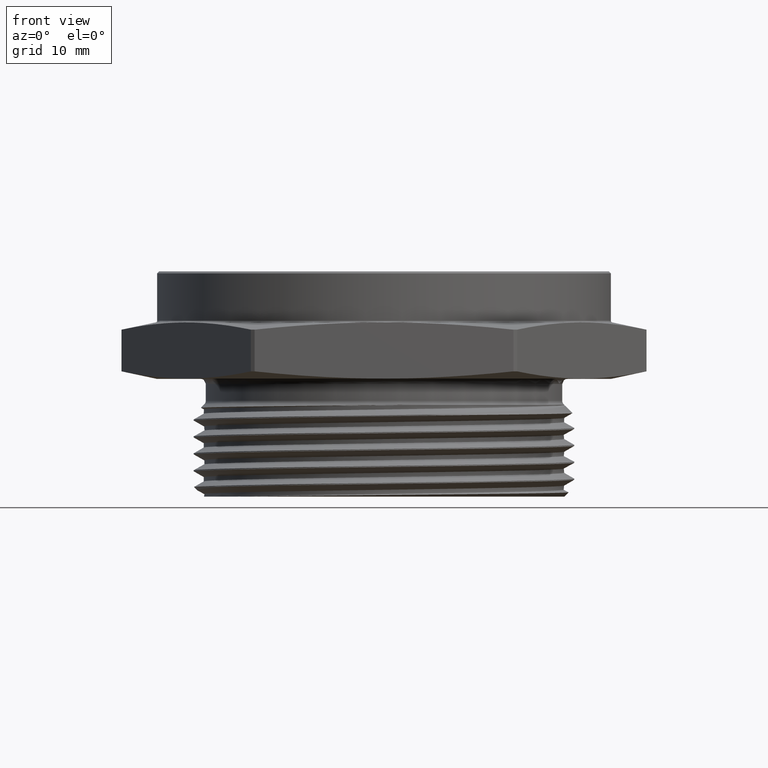
[diagram: clean part render]
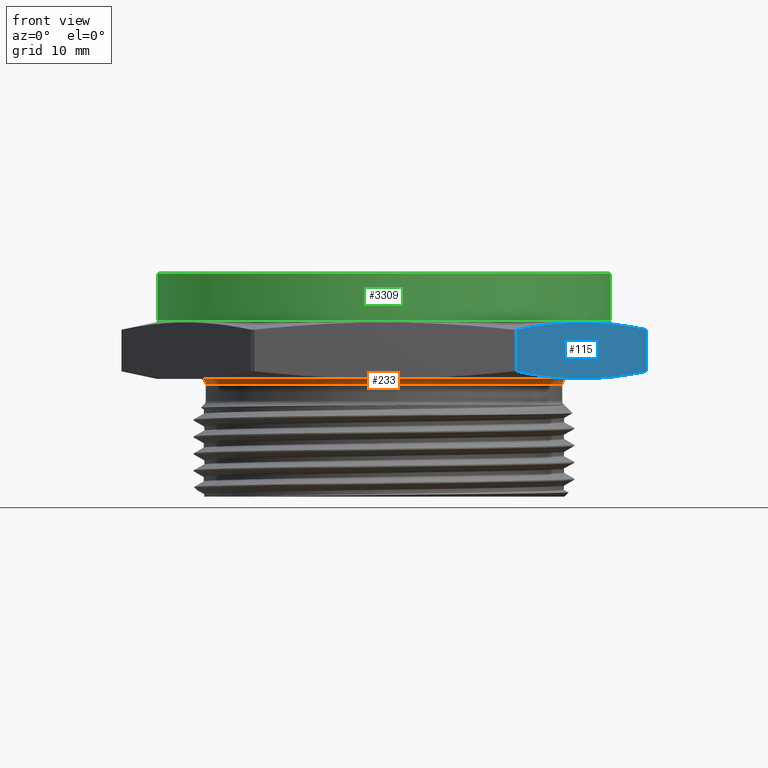
[diagram: same view with three faces highlighted in distinct colors, each labeled with its STEP entity id]
A machine part, front view with three faces highlighted in distinct colors.
Their STEP definitions:

[orange] entity #233 — the highlighted toroidal blend (fillet) surface has major radius 22.9362 mm and minor (blend) radius 0.635 mm.
#7 = VERTEX_POINT ( 'NONE', #2650 ) ;
#46 = VERTEX_POINT ( 'NONE', #2626 ) ;
#47 = VERTEX_POINT ( 'NONE', #2715 ) ;
#48 = VERTEX_POINT ( 'NONE', #2623 ) ;
#88 = EDGE_LOOP ( 'NONE', ( #101, #102, #103, #104 ) ) ;
#101 = ORIENTED_EDGE ( 'NONE', *, *, #626, .F. ) ;
#102 = ORIENTED_EDGE ( 'NONE', *, *, #627, .T. ) ;
#103 = ORIENTED_EDGE ( 'NONE', *, *, #628, .T. ) ;
#104 = ORIENTED_EDGE ( 'NONE', *, *, #629, .F. ) ;
#233 = ADVANCED_FACE ( 'NONE', ( #308 ), #302, .F. ) ;
#302 = TOROIDAL_SURFACE ( 'NONE', #356, 0.9030000000000000200, 0.02500000000000000500 ) ;
#308 = FACE_OUTER_BOUND ( 'NONE', #88, .T. ) ;
#356 = AXIS2_PLACEMENT_3D ( 'NONE', #2697, #2698, #2695 ) ;
#389 = AXIS2_PLACEMENT_3D ( 'NONE', #938, #937, #936 ) ;
#390 = AXIS2_PLACEMENT_3D ( 'NONE', #934, #933, #932 ) ;
#391 = AXIS2_PLACEMENT_3D ( 'NONE', #930, #929, #928 ) ;
#392 = AXIS2_PLACEMENT_3D ( 'NONE', #927, #926, #925 ) ;
#487 = CIRCLE ( 'NONE', #390, 0.02500000000000000500 ) ;
#488 = CIRCLE ( 'NONE', #391, 0.8780000000000000000 ) ;
#489 = CIRCLE ( 'NONE', #389, 0.9030000000000000200 ) ;
#491 = CIRCLE ( 'NONE', #392, 0.02500000000000000500 ) ;
#626 = EDGE_CURVE ( 'NONE', #7, #46, #489, .T. ) ;
#627 = EDGE_CURVE ( 'NONE', #7, #48, #487, .T. ) ;
#628 = EDGE_CURVE ( 'NONE', #48, #47, #488, .T. ) ;
#629 = EDGE_CURVE ( 'NONE', #46, #47, #491, .T. ) ;
#925 = DIRECTION ( 'NONE',  ( 0.0000000000000000000, 0.0000000000000000000, -1.000000000000000000 ) ) ;
#926 = DIRECTION ( 'NONE',  ( 0.0000000000000000000, -1.000000000000000000, 0.0000000000000000000 ) ) ;
#927 = CARTESIAN_POINT ( 'NONE',  ( 0.9030000000000000200, 0.0000000000000000000, -0.02500000000000003300 ) ) ;
#928 = DIRECTION ( 'NONE',  ( 1.000000000000000000, 0.0000000000000000000, 0.0000000000000000000 ) ) ;
#929 = DIRECTION ( 'NONE',  ( -0.0000000000000000000, -0.0000000000000000000, 1.000000000000000000 ) ) ;
#930 = CARTESIAN_POINT ( 'NONE',  ( 0.0000000000000000000, 0.0000000000000000000, -0.02500000000000003600 ) ) ;
#932 = DIRECTION ( 'NONE',  ( -1.000000000000000000, 1.224646799147351700E-016, 0.0000000000000000000 ) ) ;
#933 = DIRECTION ( 'NONE',  ( 1.224646799147353200E-016, 1.000000000000000000, 0.0000000000000000000 ) ) ;
#934 = CARTESIAN_POINT ( 'NONE',  ( -0.9030000000000000200, 1.105856059630060000E-016, -0.02500000000000003300 ) ) ;
#936 = DIRECTION ( 'NONE',  ( 1.000000000000000000, 0.0000000000000000000, 0.0000000000000000000 ) ) ;
#937 = DIRECTION ( 'NONE',  ( -0.0000000000000000000, -0.0000000000000000000, 1.000000000000000000 ) ) ;
#938 = CARTESIAN_POINT ( 'NONE',  ( 0.0000000000000000000, 0.0000000000000000000, -2.987958743070287600E-017 ) ) ;
#2623 = CARTESIAN_POINT ( 'NONE',  ( -0.8780000000000000000, 1.075239889651376100E-016, -0.02500000000000003600 ) ) ;
#2626 = CARTESIAN_POINT ( 'NONE',  ( 0.9030000000000000200, 0.0000000000000000000, -2.774533118565267500E-017 ) ) ;
#2650 = CARTESIAN_POINT ( 'NONE',  ( -0.9030000000000000200, 1.105856059630060000E-016, -2.774533118565267500E-017 ) ) ;
#2695 = DIRECTION ( 'NONE',  ( 1.000000000000000000, 0.0000000000000000000, 0.0000000000000000000 ) ) ;
#2697 = CARTESIAN_POINT ( 'NONE',  ( 0.0000000000000000000, 0.0000000000000000000, -0.02500000000000003300 ) ) ;
#2698 = DIRECTION ( 'NONE',  ( -0.0000000000000000000, -0.0000000000000000000, 1.000000000000000000 ) ) ;
#2715 = CARTESIAN_POINT ( 'NONE',  ( 0.8780000000000000000, 0.0000000000000000000, -0.02500000000000003600 ) ) ;

[blue] entity #115 — the highlighted planar face has unit normal (-0.866, 0.5, 0).
#115 = ADVANCED_FACE ( 'NONE', ( #283 ), #2747, .F. ) ;
#123 = VERTEX_POINT ( 'NONE', #2737 ) ;
#124 = VERTEX_POINT ( 'NONE', #2736 ) ;
#127 = VERTEX_POINT ( 'NONE', #2727 ) ;
#130 = VERTEX_POINT ( 'NONE', #2724 ) ;
#223 = LINE ( 'NONE', #3171, #224 ) ;
#224 = VECTOR ( 'NONE', #3172, 39.37007874015748100 ) ;
#225 = LINE ( 'NONE', #3189, #226 ) ;
#226 = VECTOR ( 'NONE', #3191, 39.37007874015748100 ) ;
#283 = FACE_OUTER_BOUND ( 'NONE', #1709, .T. ) ;
#357 = AXIS2_PLACEMENT_3D ( 'NONE', #2745, #2741, #2740 ) ;
#535 = B_SPLINE_CURVE_WITH_KNOTS ( 'NONE', 3,
 ( #3176, #3177, #3182, #3183, #3184, #3185, #3186, #3187, #3188 ),
 .UNSPECIFIED., .F., .F.,
 ( 4, 2, 1, 2, 4 ),
 ( 1.908587031545563600E-006, 0.008097324754050061500, 0.01619274092106858000, 0.02428815708808709400, 0.03238357325510560900 ),
 .UNSPECIFIED. ) ;
#536 = B_SPLINE_CURVE_WITH_KNOTS ( 'NONE', 3,
 ( #3190, #3181, #3194, #3195, #3196, #3197, #3198, #3199, #3200 ),
 .UNSPECIFIED., .F., .F.,
 ( 4, 2, 1, 2, 4 ),
 ( 1.908587031559784100E-006, 0.008097324754050078800, 0.01619274092106859400, 0.02428815708808710800, 0.03238357325510562300 ),
 .UNSPECIFIED. ) ;
#712 = EDGE_CURVE ( 'NONE', #130, #127, #223, .T. ) ;
#713 = EDGE_CURVE ( 'NONE', #124, #130, #535, .T. ) ;
#714 = EDGE_CURVE ( 'NONE', #123, #124, #225, .T. ) ;
#715 = EDGE_CURVE ( 'NONE', #127, #123, #536, .T. ) ;
#986 = ORIENTED_EDGE ( 'NONE', *, *, #712, .F. ) ;
#987 = ORIENTED_EDGE ( 'NONE', *, *, #713, .F. ) ;
#988 = ORIENTED_EDGE ( 'NONE', *, *, #714, .F. ) ;
#989 = ORIENTED_EDGE ( 'NONE', *, *, #715, .F. ) ;
#1709 = EDGE_LOOP ( 'NONE', ( #986, #987, #988, #989 ) ) ;
#2724 = CARTESIAN_POINT ( 'NONE',  ( 1.292995751187356400, -0.01046566497281166200, 0.2426882238153006100 ) ) ;
#2727 = CARTESIAN_POINT ( 'NONE',  ( 1.292995751187356400, -0.01046566497281166200, 0.03731177618469939900 ) ) ;
#2736 = CARTESIAN_POINT ( 'NONE',  ( 0.6555614073276314600, -1.114534335027187200, 0.2426882238153007200 ) ) ;
#2737 = CARTESIAN_POINT ( 'NONE',  ( 0.6555614073276314600, -1.114534335027187200, 0.03731177618469939900 ) ) ;
#2740 = DIRECTION ( 'NONE',  ( -0.4999999999999994400, -0.8660254037844389300, 0.0000000000000000000 ) ) ;
#2741 = DIRECTION ( 'NONE',  ( -0.8660254037844390400, 0.4999999999999995000, 0.0000000000000000000 ) ) ;
#2745 = CARTESIAN_POINT ( 'NONE',  ( 0.6495190528383294500, -1.125000000000000200, 0.2800000000000000300 ) ) ;
#2747 = PLANE ( 'NONE',  #357 ) ;
#3171 = CARTESIAN_POINT ( 'NONE',  ( 1.292995751187356400, -0.01046566497281166200, -3.903159644372015800E-017 ) ) ;
#3172 = DIRECTION ( 'NONE',  ( -1.224646799147349800E-016, -0.0000000000000000000, -1.000000000000000000 ) ) ;
#3176 = CARTESIAN_POINT ( 'NONE',  ( 0.6555614073276314600, -1.114534335027187200, 0.2426882238153007200 ) ) ;
#3177 = CARTESIAN_POINT ( 'NONE',  ( 0.7086809359826087300, -1.022528612522655800, 0.2538204714823705800 ) ) ;
#3181 = CARTESIAN_POINT ( 'NONE',  ( 1.239876222532379400, -0.1024713874773428700, 0.02617952851762944700 ) ) ;
#3182 = CARTESIAN_POINT ( 'NONE',  ( 0.7618004646375857700, -0.9305228900181248300, 0.2628394654105646300 ) ) ;
#3183 = CARTESIAN_POINT ( 'NONE',  ( 0.8680395219475397500, -0.7465114450090619700, 0.2751500099443325300 ) ) ;
#3184 = CARTESIAN_POINT ( 'NONE',  ( 0.9742785792574940600, -0.5624999999999990000, 0.2816616416306173000 ) ) ;
#3185 = CARTESIAN_POINT ( 'NONE',  ( 1.080517636567448000, -0.3784885549909367500, 0.2751500099443325300 ) ) ;
#3186 = CARTESIAN_POINT ( 'NONE',  ( 1.186756693877402300, -0.1944771099818742000, 0.2628394654105645800 ) ) ;
#3187 = CARTESIAN_POINT ( 'NONE',  ( 1.239876222532379400, -0.1024713874773429100, 0.2538204714823705800 ) ) ;
#3188 = CARTESIAN_POINT ( 'NONE',  ( 1.292995751187356400, -0.01046566497281166200, 0.2426882238153006100 ) ) ;
#3189 = CARTESIAN_POINT ( 'NONE',  ( 0.6555614073276314600, -1.114534335027187200, 3.903159644372015800E-017 ) ) ;
#3190 = CARTESIAN_POINT ( 'NONE',  ( 1.292995751187356400, -0.01046566497281166200, 0.03731177618469939900 ) ) ;
#3191 = DIRECTION ( 'NONE',  ( 1.224646799147349800E-016, 0.0000000000000000000, 1.000000000000000000 ) ) ;
#3194 = CARTESIAN_POINT ( 'NONE',  ( 1.186756693877402300, -0.1944771099818742300, 0.01716053458943542900 ) ) ;
#3195 = CARTESIAN_POINT ( 'NONE',  ( 1.080517636567448000, -0.3784885549909367500, 0.004849990055667484700 ) ) ;
#3196 = CARTESIAN_POINT ( 'NONE',  ( 0.9742785792574931700, -0.5624999999999996700, -0.001661641630617125500 ) ) ;
#3197 = CARTESIAN_POINT ( 'NONE',  ( 0.8680395219475398600, -0.7465114450090617500, 0.004849990055667526300 ) ) ;
#3198 = CARTESIAN_POINT ( 'NONE',  ( 0.7618004646375857700, -0.9305228900181246000, 0.01716053458943550200 ) ) ;
#3199 = CARTESIAN_POINT ( 'NONE',  ( 0.7086809359826087300, -1.022528612522656000, 0.02617952851762953700 ) ) ;
#3200 = CARTESIAN_POINT ( 'NONE',  ( 0.6555614073276314600, -1.114534335027187200, 0.03731177618469939900 ) ) ;

[green] entity #3309 — the highlighted cylindrical surface (partial cylindrical patch) has radius 28.3845 mm, axis along (-0, -0, -1).
#42 = VERTEX_POINT ( 'NONE', #2636 ) ;
#49 = VERTEX_POINT ( 'NONE', #2646 ) ;
#58 = VERTEX_POINT ( 'NONE', #2584 ) ;
#60 = VERTEX_POINT ( 'NONE', #2578 ) ;
#172 = ORIENTED_EDGE ( 'NONE', *, *, #647, .T. ) ;
#174 = VECTOR ( 'NONE', #2817, 39.37007874015748100 ) ;
#175 = LINE ( 'NONE', #2816, #178 ) ;
#178 = VECTOR ( 'NONE', #2810, 39.37007874015748100 ) ;
#400 = AXIS2_PLACEMENT_3D ( 'NONE', #2792, #2793, #2794 ) ;
#429 = AXIS2_PLACEMENT_3D ( 'NONE', #3273, #3274, #3275 ) ;
#451 = AXIS2_PLACEMENT_3D ( 'NONE', #2138, #2134, #2135 ) ;
#506 = CIRCLE ( 'NONE', #400, 1.117500000000000200 ) ;
#517 = LINE ( 'NONE', #2811, #174 ) ;
#579 = CIRCLE ( 'NONE', #429, 1.117500000000000200 ) ;
#610 = FACE_OUTER_BOUND ( 'NONE', #1691, .T. ) ;
#613 = CYLINDRICAL_SURFACE ( 'NONE', #451, 1.117500000000000200 ) ;
#647 = EDGE_CURVE ( 'NONE', #42, #49, #506, .T. ) ;
#655 = EDGE_CURVE ( 'NONE', #58, #49, #517, .T. ) ;
#657 = EDGE_CURVE ( 'NONE', #60, #42, #175, .T. ) ;
#735 = EDGE_CURVE ( 'NONE', #58, #60, #579, .T. ) ;
#1691 = EDGE_LOOP ( 'NONE', ( #2368, #2366, #2369, #172 ) ) ;
#2134 = DIRECTION ( 'NONE',  ( -0.0000000000000000000, -0.0000000000000000000, -1.000000000000000000 ) ) ;
#2135 = DIRECTION ( 'NONE',  ( -1.000000000000000000, 0.0000000000000000000, 0.0000000000000000000 ) ) ;
#2138 = CARTESIAN_POINT ( 'NONE',  ( 0.0000000000000000000, 0.0000000000000000000, 0.5300000000000000300 ) ) ;
#2366 = ORIENTED_EDGE ( 'NONE', *, *, #735, .T. ) ;
#2368 = ORIENTED_EDGE ( 'NONE', *, *, #655, .F. ) ;
#2369 = ORIENTED_EDGE ( 'NONE', *, *, #657, .T. ) ;
#2578 = CARTESIAN_POINT ( 'NONE',  ( -1.117500000000000200, 0.0000000000000000000, 0.5200000000000000200 ) ) ;
#2584 = CARTESIAN_POINT ( 'NONE',  ( 1.117500000000000200, 1.368542798047167300E-016, 0.5200000000000000200 ) ) ;
#2636 = CARTESIAN_POINT ( 'NONE',  ( -1.117500000000000200, 0.0000000000000000000, 0.2864782722655603900 ) ) ;
#2646 = CARTESIAN_POINT ( 'NONE',  ( 1.117500000000000200, 1.368542798047167300E-016, 0.2864782722655602200 ) ) ;
#2792 = CARTESIAN_POINT ( 'NONE',  ( 0.0000000000000000000, 0.0000000000000000000, 0.2864782722655602700 ) ) ;
#2793 = DIRECTION ( 'NONE',  ( 6.123233995736748800E-017, 0.0000000000000000000, 1.000000000000000000 ) ) ;
#2794 = DIRECTION ( 'NONE',  ( 1.000000000000000000, 0.0000000000000000000, -6.111516764349581000E-017 ) ) ;
#2810 = DIRECTION ( 'NONE',  ( -0.0000000000000000000, -0.0000000000000000000, -1.000000000000000000 ) ) ;
#2811 = CARTESIAN_POINT ( 'NONE',  ( 1.117500000000000200, 1.368542798047167300E-016, 0.5300000000000000300 ) ) ;
#2816 = CARTESIAN_POINT ( 'NONE',  ( -1.117500000000000200, 0.0000000000000000000, 0.5300000000000000300 ) ) ;
#2817 = DIRECTION ( 'NONE',  ( -0.0000000000000000000, -0.0000000000000000000, -1.000000000000000000 ) ) ;
#3273 = CARTESIAN_POINT ( 'NONE',  ( 0.0000000000000000000, 0.0000000000000000000, 0.5200000000000000200 ) ) ;
#3274 = DIRECTION ( 'NONE',  ( 0.0000000000000000000, 0.0000000000000000000, -1.000000000000000000 ) ) ;
#3275 = DIRECTION ( 'NONE',  ( 1.000000000000000000, 0.0000000000000000000, 0.0000000000000000000 ) ) ;
#3309 = ADVANCED_FACE ( 'NONE', ( #610 ), #613, .T. ) ;